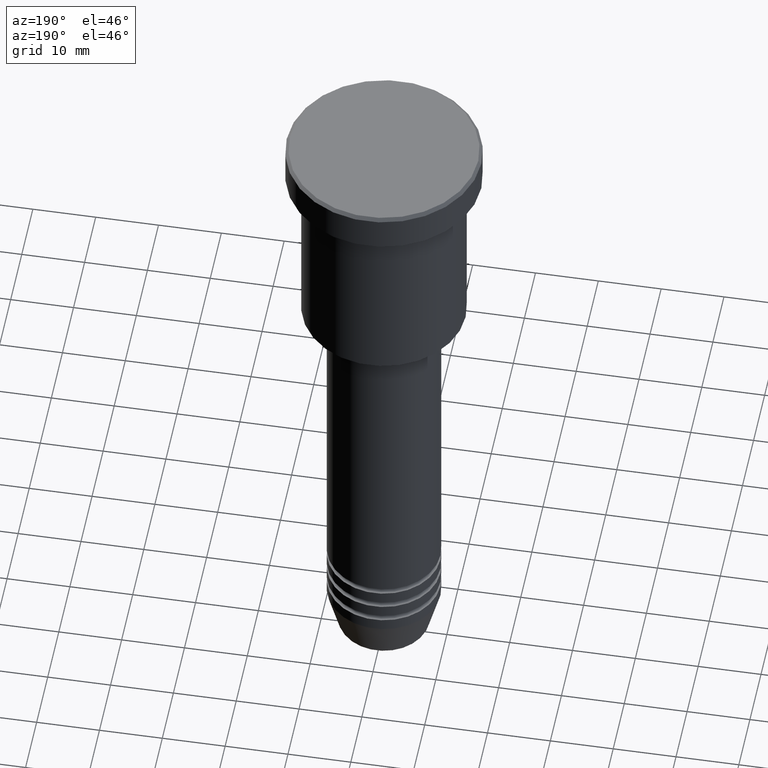
[diagram: clean part render]
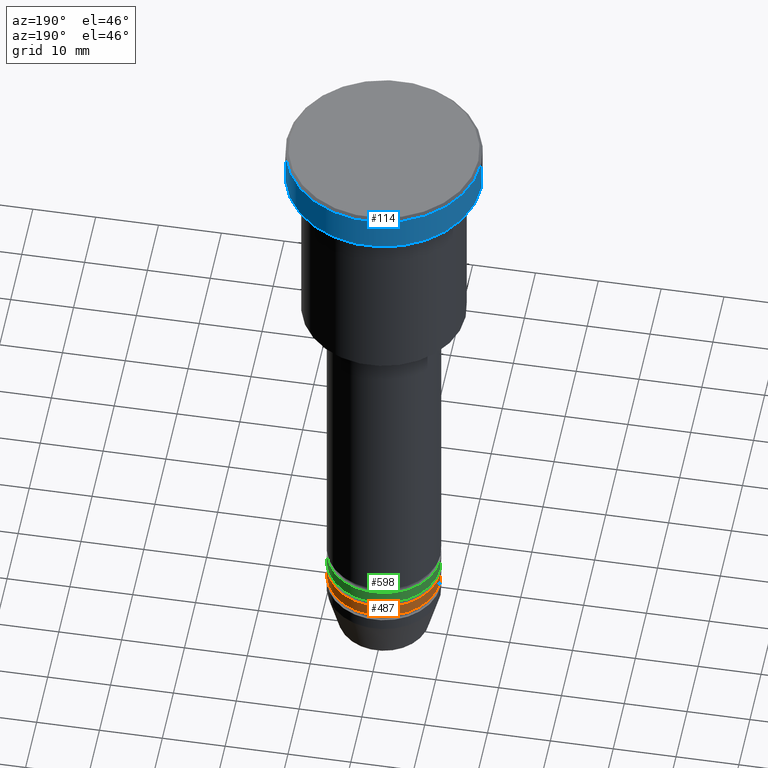
[diagram: same view with three faces highlighted in distinct colors, each labeled with its STEP entity id]
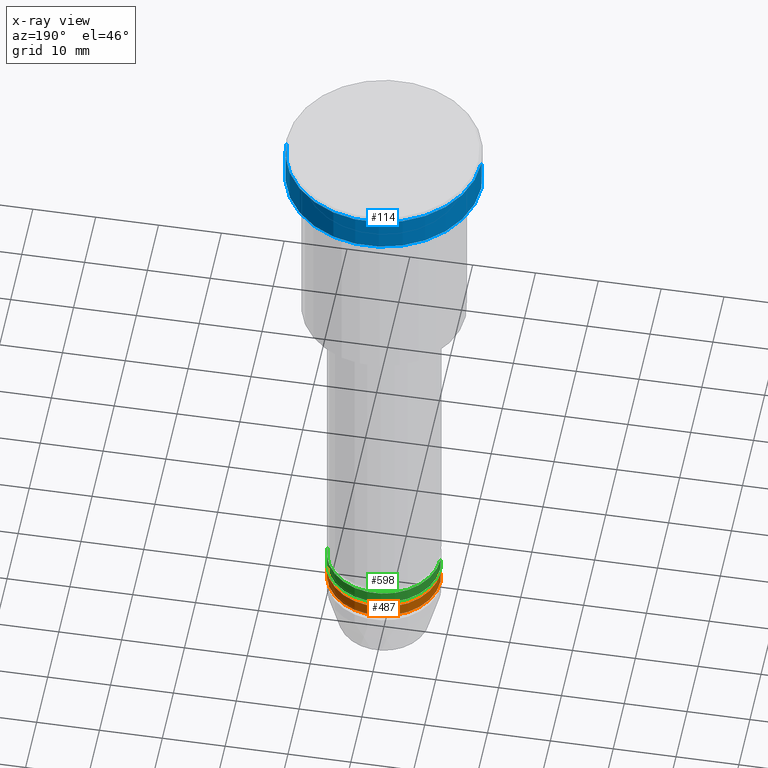
[diagram: x-ray of the same camera — body ghosted, the three highlighted faces saturated]
A machine part, auxiliary view with three faces highlighted in distinct colors.
The next image is the same camera in x-ray (body ghosted, the three faces saturated) — at least one of them is partly hidden behind the body in this view.
Their STEP definitions:

[orange] entity #487 — the highlighted cylindrical surface (partial cylindrical patch) has radius 9 mm, axis along (-0, -0, 1).
#14 = VECTOR ( 'NONE', #575, 1000.000000000000000 ) ;
#59 = CARTESIAN_POINT ( 'NONE',  ( 0.000000000000000000, 0.000000000000000000, -95.99999999999997158 ) ) ;
#73 = VERTEX_POINT ( 'NONE', #316 ) ;
#75 = CYLINDRICAL_SURFACE ( 'NONE', #123, 9.000000000000000000 ) ;
#81 = CARTESIAN_POINT ( 'NONE',  ( 0.000000000000000000, 0.000000000000000000, 0.000000000000000000 ) ) ;
#108 = VECTOR ( 'NONE', #528, 1000.000000000000000 ) ;
#123 = AXIS2_PLACEMENT_3D ( 'NONE', #81, #441, #1002 ) ;
#124 = EDGE_CURVE ( 'NONE', #145, #463, #144, .T. ) ;
#132 = CARTESIAN_POINT ( 'NONE',  ( -9.000000000000000000, 1.102182119232617714E-15, -95.99999999999997158 ) ) ;
#144 = LINE ( 'NONE', #699, #108 ) ;
#145 = VERTEX_POINT ( 'NONE', #159 ) ;
#159 = CARTESIAN_POINT ( 'NONE',  ( 9.000000000000000000, 0.000000000000000000, -95.99999999999997158 ) ) ;
#202 = ORIENTED_EDGE ( 'NONE', *, *, #427, .T. ) ;
#208 = DIRECTION ( 'NONE',  ( -0.000000000000000000, -0.000000000000000000, 1.000000000000000000 ) ) ;
#221 = EDGE_LOOP ( 'NONE', ( #202, #683, #289, #238 ) ) ;
#227 = CARTESIAN_POINT ( 'NONE',  ( 9.000000000000000000, 0.000000000000000000, -93.99999999999998579 ) ) ;
#238 = ORIENTED_EDGE ( 'NONE', *, *, #124, .F. ) ;
#289 = ORIENTED_EDGE ( 'NONE', *, *, #585, .F. ) ;
#316 = CARTESIAN_POINT ( 'NONE',  ( -9.000000000000000000, 1.102182119232617714E-15, -93.99999999999998579 ) ) ;
#348 = CIRCLE ( 'NONE', #888, 9.000000000000000000 ) ;
#377 = EDGE_CURVE ( 'NONE', #661, #73, #906, .T. ) ;
#388 = DIRECTION ( 'NONE',  ( 1.000000000000000000, 0.000000000000000000, 0.000000000000000000 ) ) ;
#409 = DIRECTION ( 'NONE',  ( -0.000000000000000000, -0.000000000000000000, 1.000000000000000000 ) ) ;
#427 = EDGE_CURVE ( 'NONE', #145, #661, #928, .T. ) ;
#441 = DIRECTION ( 'NONE',  ( -0.000000000000000000, -0.000000000000000000, 1.000000000000000000 ) ) ;
#463 = VERTEX_POINT ( 'NONE', #227 ) ;
#487 = ADVANCED_FACE ( 'NONE', ( #694 ), #75, .T. ) ;
#528 = DIRECTION ( 'NONE',  ( -0.000000000000000000, -0.000000000000000000, 1.000000000000000000 ) ) ;
#557 = AXIS2_PLACEMENT_3D ( 'NONE', #59, #409, #713 ) ;
#575 = DIRECTION ( 'NONE',  ( -0.000000000000000000, -0.000000000000000000, 1.000000000000000000 ) ) ;
#585 = EDGE_CURVE ( 'NONE', #463, #73, #348, .T. ) ;
#661 = VERTEX_POINT ( 'NONE', #132 ) ;
#683 = ORIENTED_EDGE ( 'NONE', *, *, #377, .T. ) ;
#694 = FACE_OUTER_BOUND ( 'NONE', #221, .T. ) ;
#699 = CARTESIAN_POINT ( 'NONE',  ( 9.000000000000000000, 0.000000000000000000, 0.000000000000000000 ) ) ;
#713 = DIRECTION ( 'NONE',  ( 1.000000000000000000, 0.000000000000000000, 0.000000000000000000 ) ) ;
#813 = CARTESIAN_POINT ( 'NONE',  ( -9.000000000000000000, 1.102182119232617714E-15, 0.000000000000000000 ) ) ;
#888 = AXIS2_PLACEMENT_3D ( 'NONE', #1041, #208, #388 ) ;
#906 = LINE ( 'NONE', #813, #14 ) ;
#928 = CIRCLE ( 'NONE', #557, 9.000000000000000000 ) ;
#1002 = DIRECTION ( 'NONE',  ( 1.000000000000000000, 0.000000000000000000, 0.000000000000000000 ) ) ;
#1041 = CARTESIAN_POINT ( 'NONE',  ( 0.000000000000000000, 0.000000000000000000, -93.99999999999998579 ) ) ;

[blue] entity #114 — the highlighted cylindrical surface (partial cylindrical patch) has radius 15.5 mm, axis along (-0, -0, 1).
#89 = EDGE_CURVE ( 'NONE', #914, #1176, #850, .T. ) ;
#102 = CARTESIAN_POINT ( 'NONE',  ( 15.50000000000000000, 0.000000000000000000, 0.000000000000000000 ) ) ;
#114 = ADVANCED_FACE ( 'NONE', ( #757 ), #302, .T. ) ;
#125 = DIRECTION ( 'NONE',  ( 1.000000000000000000, 0.000000000000000000, 0.000000000000000000 ) ) ;
#189 = CARTESIAN_POINT ( 'NONE',  ( 0.000000000000000000, 0.000000000000000000, -0.4999999999999987232 ) ) ;
#194 = VECTOR ( 'NONE', #1168, 1000.000000000000000 ) ;
#302 = CYLINDRICAL_SURFACE ( 'NONE', #990, 15.50000000000000000 ) ;
#333 = AXIS2_PLACEMENT_3D ( 'NONE', #680, #1042, #478 ) ;
#372 = DIRECTION ( 'NONE',  ( 1.000000000000000000, 0.000000000000000000, 0.000000000000000000 ) ) ;
#438 = CARTESIAN_POINT ( 'NONE',  ( -15.50000000000000000, 1.898202538678397557E-15, -5.999999999999995559 ) ) ;
#472 = EDGE_CURVE ( 'NONE', #1176, #793, #521, .T. ) ;
#478 = DIRECTION ( 'NONE',  ( 1.000000000000000000, 0.000000000000000000, 0.000000000000000000 ) ) ;
#506 = ORIENTED_EDGE ( 'NONE', *, *, #1099, .F. ) ;
#521 = LINE ( 'NONE', #887, #194 ) ;
#548 = DIRECTION ( 'NONE',  ( 0.000000000000000000, 0.000000000000000000, -1.000000000000000000 ) ) ;
#558 = ORIENTED_EDGE ( 'NONE', *, *, #89, .T. ) ;
#591 = VERTEX_POINT ( 'NONE', #761 ) ;
#626 = CARTESIAN_POINT ( 'NONE',  ( -15.50000000000000000, 1.898202538678397557E-15, -0.4999999999999987232 ) ) ;
#634 = VECTOR ( 'NONE', #999, 1000.000000000000000 ) ;
#642 = LINE ( 'NONE', #102, #634 ) ;
#646 = EDGE_CURVE ( 'NONE', #793, #591, #1050, .T. ) ;
#663 = CARTESIAN_POINT ( 'NONE',  ( 0.000000000000000000, 0.000000000000000000, 0.000000000000000000 ) ) ;
#680 = CARTESIAN_POINT ( 'NONE',  ( 0.000000000000000000, 0.000000000000000000, -5.999999999999995559 ) ) ;
#751 = ORIENTED_EDGE ( 'NONE', *, *, #646, .T. ) ;
#752 = AXIS2_PLACEMENT_3D ( 'NONE', #189, #548, #372 ) ;
#757 = FACE_OUTER_BOUND ( 'NONE', #767, .T. ) ;
#761 = CARTESIAN_POINT ( 'NONE',  ( 15.50000000000000000, 0.000000000000000000, -0.4999999999999987232 ) ) ;
#767 = EDGE_LOOP ( 'NONE', ( #558, #1052, #751, #506 ) ) ;
#793 = VERTEX_POINT ( 'NONE', #626 ) ;
#850 = CIRCLE ( 'NONE', #333, 15.50000000000000000 ) ;
#887 = CARTESIAN_POINT ( 'NONE',  ( -15.50000000000000000, 1.898202538678397557E-15, 0.000000000000000000 ) ) ;
#914 = VERTEX_POINT ( 'NONE', #1080 ) ;
#948 = DIRECTION ( 'NONE',  ( -0.000000000000000000, -0.000000000000000000, 1.000000000000000000 ) ) ;
#990 = AXIS2_PLACEMENT_3D ( 'NONE', #663, #948, #125 ) ;
#999 = DIRECTION ( 'NONE',  ( -0.000000000000000000, -0.000000000000000000, 1.000000000000000000 ) ) ;
#1042 = DIRECTION ( 'NONE',  ( -0.000000000000000000, -0.000000000000000000, 1.000000000000000000 ) ) ;
#1050 = CIRCLE ( 'NONE', #752, 15.50000000000000000 ) ;
#1052 = ORIENTED_EDGE ( 'NONE', *, *, #472, .T. ) ;
#1080 = CARTESIAN_POINT ( 'NONE',  ( 15.50000000000000000, 0.000000000000000000, -5.999999999999995559 ) ) ;
#1099 = EDGE_CURVE ( 'NONE', #914, #591, #642, .T. ) ;
#1168 = DIRECTION ( 'NONE',  ( -0.000000000000000000, -0.000000000000000000, 1.000000000000000000 ) ) ;
#1176 = VERTEX_POINT ( 'NONE', #438 ) ;

[green] entity #598 — the highlighted cylindrical surface (partial cylindrical patch) has radius 9 mm, axis along (-0, -0, 1).
#54 = DIRECTION ( 'NONE',  ( 1.000000000000000000, 0.000000000000000000, 0.000000000000000000 ) ) ;
#55 = EDGE_CURVE ( 'NONE', #96, #220, #669, .T. ) ;
#56 = CARTESIAN_POINT ( 'NONE',  ( 9.000000000000000000, 0.000000000000000000, -92.99999999999997158 ) ) ;
#96 = VERTEX_POINT ( 'NONE', #56 ) ;
#103 = DIRECTION ( 'NONE',  ( -0.000000000000000000, -0.000000000000000000, 1.000000000000000000 ) ) ;
#111 = VERTEX_POINT ( 'NONE', #204 ) ;
#182 = CYLINDRICAL_SURFACE ( 'NONE', #195, 9.000000000000000000 ) ;
#183 = DIRECTION ( 'NONE',  ( -0.000000000000000000, -0.000000000000000000, 1.000000000000000000 ) ) ;
#195 = AXIS2_PLACEMENT_3D ( 'NONE', #549, #488, #54 ) ;
#199 = CIRCLE ( 'NONE', #874, 9.000000000000000000 ) ;
#204 = CARTESIAN_POINT ( 'NONE',  ( -9.000000000000000000, 1.102182119232617714E-15, -92.99999999999997158 ) ) ;
#219 = CIRCLE ( 'NONE', #1181, 9.000000000000000000 ) ;
#220 = VERTEX_POINT ( 'NONE', #881 ) ;
#251 = EDGE_CURVE ( 'NONE', #111, #1116, #556, .T. ) ;
#254 = ORIENTED_EDGE ( 'NONE', *, *, #251, .T. ) ;
#258 = VECTOR ( 'NONE', #183, 1000.000000000000000 ) ;
#344 = EDGE_CURVE ( 'NONE', #96, #111, #219, .T. ) ;
#371 = CARTESIAN_POINT ( 'NONE',  ( -9.000000000000000000, 1.102182119232617714E-15, -90.99999999999998579 ) ) ;
#384 = EDGE_CURVE ( 'NONE', #220, #1116, #199, .T. ) ;
#457 = DIRECTION ( 'NONE',  ( 1.000000000000000000, 0.000000000000000000, 0.000000000000000000 ) ) ;
#462 = CARTESIAN_POINT ( 'NONE',  ( -9.000000000000000000, 1.102182119232617714E-15, 0.000000000000000000 ) ) ;
#488 = DIRECTION ( 'NONE',  ( -0.000000000000000000, -0.000000000000000000, 1.000000000000000000 ) ) ;
#549 = CARTESIAN_POINT ( 'NONE',  ( 0.000000000000000000, 0.000000000000000000, 0.000000000000000000 ) ) ;
#555 = CARTESIAN_POINT ( 'NONE',  ( 0.000000000000000000, 0.000000000000000000, -92.99999999999997158 ) ) ;
#556 = LINE ( 'NONE', #462, #258 ) ;
#589 = DIRECTION ( 'NONE',  ( 1.000000000000000000, 0.000000000000000000, 0.000000000000000000 ) ) ;
#598 = ADVANCED_FACE ( 'NONE', ( #1137 ), #182, .T. ) ;
#669 = LINE ( 'NONE', #1153, #755 ) ;
#755 = VECTOR ( 'NONE', #966, 1000.000000000000000 ) ;
#859 = DIRECTION ( 'NONE',  ( -0.000000000000000000, -0.000000000000000000, 1.000000000000000000 ) ) ;
#874 = AXIS2_PLACEMENT_3D ( 'NONE', #1068, #859, #589 ) ;
#881 = CARTESIAN_POINT ( 'NONE',  ( 9.000000000000000000, 0.000000000000000000, -90.99999999999998579 ) ) ;
#884 = EDGE_LOOP ( 'NONE', ( #1070, #254, #1079, #935 ) ) ;
#935 = ORIENTED_EDGE ( 'NONE', *, *, #55, .F. ) ;
#966 = DIRECTION ( 'NONE',  ( -0.000000000000000000, -0.000000000000000000, 1.000000000000000000 ) ) ;
#1068 = CARTESIAN_POINT ( 'NONE',  ( 0.000000000000000000, 0.000000000000000000, -90.99999999999998579 ) ) ;
#1070 = ORIENTED_EDGE ( 'NONE', *, *, #344, .T. ) ;
#1079 = ORIENTED_EDGE ( 'NONE', *, *, #384, .F. ) ;
#1116 = VERTEX_POINT ( 'NONE', #371 ) ;
#1137 = FACE_OUTER_BOUND ( 'NONE', #884, .T. ) ;
#1153 = CARTESIAN_POINT ( 'NONE',  ( 9.000000000000000000, 0.000000000000000000, 0.000000000000000000 ) ) ;
#1181 = AXIS2_PLACEMENT_3D ( 'NONE', #555, #103, #457 ) ;